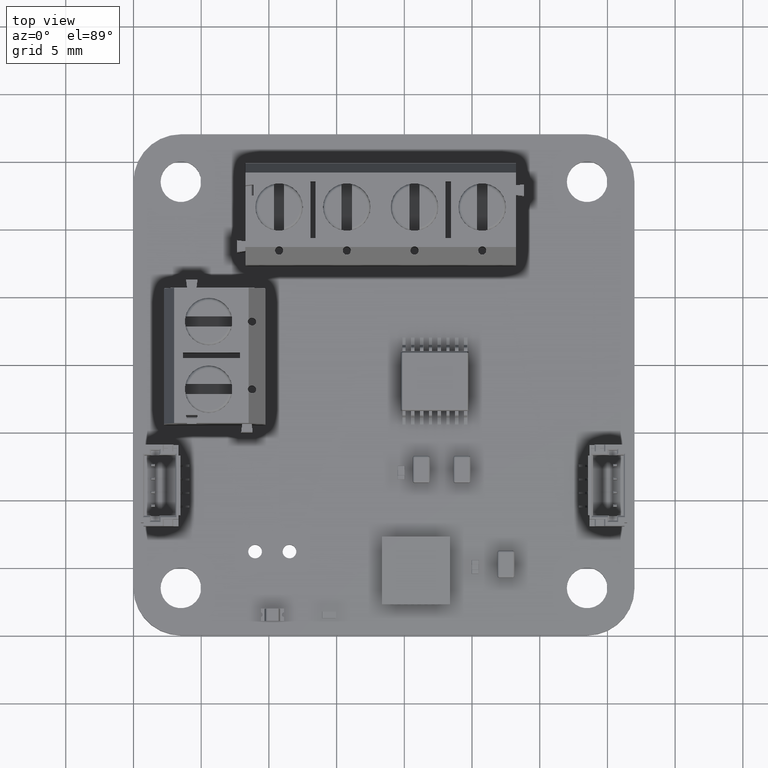
[diagram: clean part render]
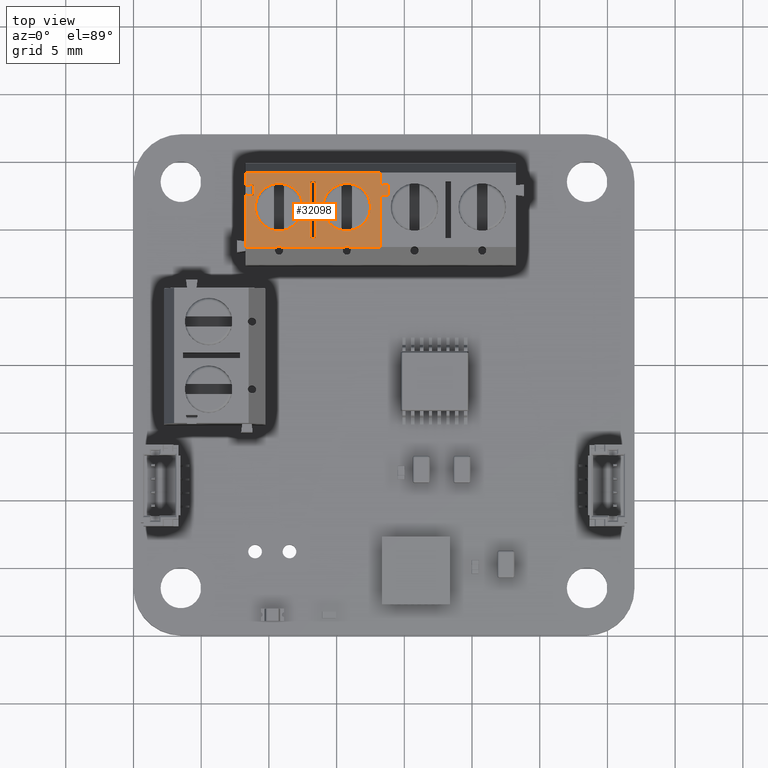
[diagram: same view with one face highlighted and labeled with its STEP entity id]
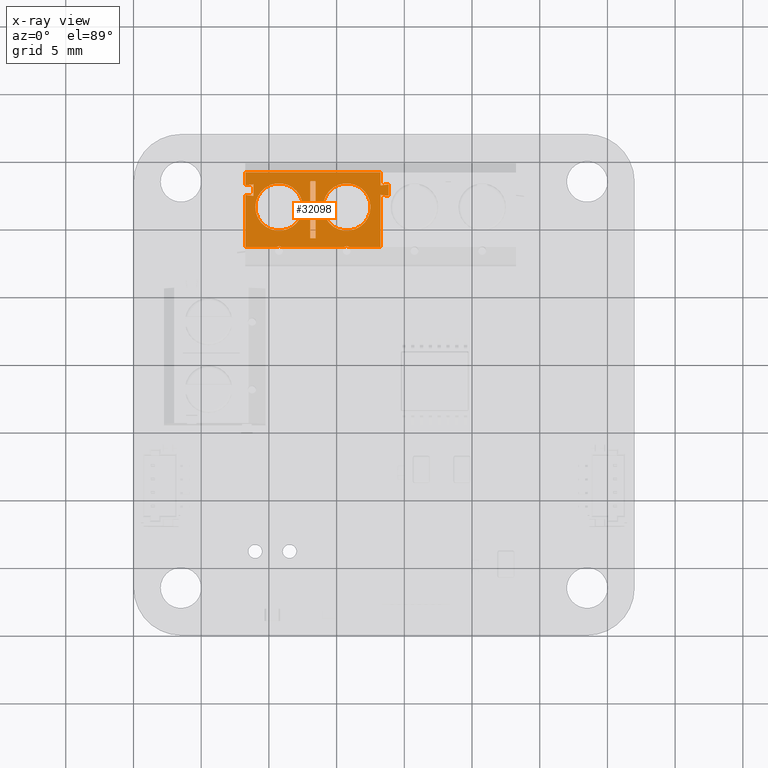
[diagram: x-ray of the same camera — body ghosted, the highlighted face saturated]
A machine part, top view. The second image highlights one B-rep face of the part: STEP entity #32098.
The next image is the same camera in x-ray: the body ghosted, the highlighted face saturated — about 0% of this face is hidden behind the body in this view.
In plain terms, the highlighted planar face has unit normal (-0, 0, 1).
Its self-contained STEP definition (entity closure, byte-faithful):
#32025 = VERTEX_POINT('',#32026);
#32026 = CARTESIAN_POINT('',(5.,2.5,4.95));
#32032 = EDGE_CURVE('',#32033,#32025,#32035,.T.);
#32033 = VERTEX_POINT('',#32034);
#32034 = CARTESIAN_POINT('',(5.,-1.35,4.95));
#32035 = LINE('',#32036,#32037);
#32036 = CARTESIAN_POINT('',(5.,-3.75,4.95));
#32037 = VECTOR('',#32038,1.);
#32038 = DIRECTION('',(0.,1.,3.469446951954E-16));
#32057 = VERTEX_POINT('',#32058);
#32058 = CARTESIAN_POINT('',(5.,-2.05,4.95));
#32064 = EDGE_CURVE('',#32065,#32057,#32067,.T.);
#32065 = VERTEX_POINT('',#32066);
#32066 = CARTESIAN_POINT('',(5.,-3.,4.95));
#32067 = LINE('',#32068,#32069);
#32068 = CARTESIAN_POINT('',(5.,-3.75,4.95));
#32069 = VECTOR('',#32070,1.);
#32070 = DIRECTION('',(0.,1.,3.469446951954E-16));
#32098 = ADVANCED_FACE('',(#32099,#32213,#32224,#32235),#32269,.T.);
#32099 = FACE_BOUND('',#32100,.T.);
#32100 = EDGE_LOOP('',(#32101,#32109,#32110,#32118,#32127,#32135,#32144,
    #32152,#32160,#32168,#32176,#32184,#32192,#32198,#32199,#32207));
#32101 = ORIENTED_EDGE('',*,*,#32102,.F.);
#32102 = EDGE_CURVE('',#32033,#32103,#32105,.T.);
#32103 = VERTEX_POINT('',#32104);
#32104 = CARTESIAN_POINT('',(4.4,-1.275,4.95));
#32105 = LINE('',#32106,#32107);
#32106 = CARTESIAN_POINT('',(5.,-1.35,4.95));
#32107 = VECTOR('',#32108,1.);
#32108 = DIRECTION('',(-0.992277876714,0.124034734589,4.303319318569E-17
    ));
#32109 = ORIENTED_EDGE('',*,*,#32032,.T.);
#32110 = ORIENTED_EDGE('',*,*,#32111,.T.);
#32111 = EDGE_CURVE('',#32025,#32112,#32114,.T.);
#32112 = VERTEX_POINT('',#32113);
#32113 = CARTESIAN_POINT('',(2.665831239518,2.5,4.95));
#32114 = LINE('',#32115,#32116);
#32115 = CARTESIAN_POINT('',(5.,2.5,4.95));
#32116 = VECTOR('',#32117,1.);
#32117 = DIRECTION('',(-1.,0.,0.));
#32118 = ORIENTED_EDGE('',*,*,#32119,.T.);
#32119 = EDGE_CURVE('',#32112,#32120,#32122,.T.);
#32120 = VERTEX_POINT('',#32121);
#32121 = CARTESIAN_POINT('',(2.334168760482,2.5,4.95));
#32122 = CIRCLE('',#32123,0.3);
#32123 = AXIS2_PLACEMENT_3D('',#32124,#32125,#32126);
#32124 = CARTESIAN_POINT('',(2.5,2.75,4.95));
#32125 = DIRECTION('',(0.,3.469446951954E-16,-1.));
#32126 = DIRECTION('',(-1.,0.,0.));
#32127 = ORIENTED_EDGE('',*,*,#32128,.T.);
#32128 = EDGE_CURVE('',#32120,#32129,#32131,.T.);
#32129 = VERTEX_POINT('',#32130);
#32130 = CARTESIAN_POINT('',(-2.334168760482,2.5,4.95));
#32131 = LINE('',#32132,#32133);
#32132 = CARTESIAN_POINT('',(5.,2.5,4.95));
#32133 = VECTOR('',#32134,1.);
#32134 = DIRECTION('',(-1.,0.,0.));
#32135 = ORIENTED_EDGE('',*,*,#32136,.T.);
#32136 = EDGE_CURVE('',#32129,#32137,#32139,.T.);
#32137 = VERTEX_POINT('',#32138);
#32138 = CARTESIAN_POINT('',(-2.665831239518,2.5,4.95));
#32139 = CIRCLE('',#32140,0.3);
#32140 = AXIS2_PLACEMENT_3D('',#32141,#32142,#32143);
#32141 = CARTESIAN_POINT('',(-2.5,2.75,4.95));
#32142 = DIRECTION('',(0.,3.469446951954E-16,-1.));
#32143 = DIRECTION('',(-1.,0.,0.));
#32144 = ORIENTED_EDGE('',*,*,#32145,.T.);
#32145 = EDGE_CURVE('',#32137,#32146,#32148,.T.);
#32146 = VERTEX_POINT('',#32147);
#32147 = CARTESIAN_POINT('',(-5.,2.5,4.95));
#32148 = LINE('',#32149,#32150);
#32149 = CARTESIAN_POINT('',(5.,2.5,4.95));
#32150 = VECTOR('',#32151,1.);
#32151 = DIRECTION('',(-1.,0.,0.));
#32152 = ORIENTED_EDGE('',*,*,#32153,.F.);
#32153 = EDGE_CURVE('',#32154,#32146,#32156,.T.);
#32154 = VERTEX_POINT('',#32155);
#32155 = CARTESIAN_POINT('',(-5.,-1.35,4.95));
#32156 = LINE('',#32157,#32158);
#32157 = CARTESIAN_POINT('',(-5.,-3.75,4.95));
#32158 = VECTOR('',#32159,1.);
#32159 = DIRECTION('',(0.,1.,3.469446951954E-16));
#32160 = ORIENTED_EDGE('',*,*,#32161,.F.);
#32161 = EDGE_CURVE('',#32162,#32154,#32164,.T.);
#32162 = VERTEX_POINT('',#32163);
#32163 = CARTESIAN_POINT('',(-5.6,-1.275,4.95));
#32164 = LINE('',#32165,#32166);
#32165 = CARTESIAN_POINT('',(-5.6,-1.275,4.95));
#32166 = VECTOR('',#32167,1.);
#32167 = DIRECTION('',(0.992277876714,-0.124034734589,
    -4.303319318569E-17));
#32168 = ORIENTED_EDGE('',*,*,#32169,.F.);
#32169 = EDGE_CURVE('',#32170,#32162,#32172,.T.);
#32170 = VERTEX_POINT('',#32171);
#32171 = CARTESIAN_POINT('',(-5.6,-2.125,4.95));
#32172 = LINE('',#32173,#32174);
#32173 = CARTESIAN_POINT('',(-5.6,-2.125,4.95));
#32174 = VECTOR('',#32175,1.);
#32175 = DIRECTION('',(0.,1.,3.469446951954E-16));
#32176 = ORIENTED_EDGE('',*,*,#32177,.F.);
#32177 = EDGE_CURVE('',#32178,#32170,#32180,.T.);
#32178 = VERTEX_POINT('',#32179);
#32179 = CARTESIAN_POINT('',(-5.,-2.05,4.95));
#32180 = LINE('',#32181,#32182);
#32181 = CARTESIAN_POINT('',(-5.,-2.05,4.95));
#32182 = VECTOR('',#32183,1.);
#32183 = DIRECTION('',(-0.992277876714,-0.124034734589,
    -4.303319318569E-17));
#32184 = ORIENTED_EDGE('',*,*,#32185,.F.);
#32185 = EDGE_CURVE('',#32186,#32178,#32188,.T.);
#32186 = VERTEX_POINT('',#32187);
#32187 = CARTESIAN_POINT('',(-5.,-3.,4.95));
#32188 = LINE('',#32189,#32190);
#32189 = CARTESIAN_POINT('',(-5.,-3.75,4.95));
#32190 = VECTOR('',#32191,1.);
#32191 = DIRECTION('',(0.,1.,3.469446951954E-16));
#32192 = ORIENTED_EDGE('',*,*,#32193,.T.);
#32193 = EDGE_CURVE('',#32186,#32065,#32194,.T.);
#32194 = LINE('',#32195,#32196);
#32195 = CARTESIAN_POINT('',(5.,-3.,4.95));
#32196 = VECTOR('',#32197,1.);
#32197 = DIRECTION('',(1.,0.,0.));
#32198 = ORIENTED_EDGE('',*,*,#32064,.T.);
#32199 = ORIENTED_EDGE('',*,*,#32200,.F.);
#32200 = EDGE_CURVE('',#32201,#32057,#32203,.T.);
#32201 = VERTEX_POINT('',#32202);
#32202 = CARTESIAN_POINT('',(4.4,-2.125,4.95));
#32203 = LINE('',#32204,#32205);
#32204 = CARTESIAN_POINT('',(4.4,-2.125,4.95));
#32205 = VECTOR('',#32206,1.);
#32206 = DIRECTION('',(0.992277876714,0.124034734589,4.303319318569E-17)
  );
#32207 = ORIENTED_EDGE('',*,*,#32208,.F.);
#32208 = EDGE_CURVE('',#32103,#32201,#32209,.T.);
#32209 = LINE('',#32210,#32211);
#32210 = CARTESIAN_POINT('',(4.4,-1.275,4.95));
#32211 = VECTOR('',#32212,1.);
#32212 = DIRECTION('',(0.,-1.,-3.469446951954E-16));
#32213 = FACE_BOUND('',#32214,.T.);
#32214 = EDGE_LOOP('',(#32215));
#32215 = ORIENTED_EDGE('',*,*,#32216,.T.);
#32216 = EDGE_CURVE('',#32217,#32217,#32219,.T.);
#32217 = VERTEX_POINT('',#32218);
#32218 = CARTESIAN_POINT('',(-0.75,-0.45,4.95));
#32219 = CIRCLE('',#32220,1.75);
#32220 = AXIS2_PLACEMENT_3D('',#32221,#32222,#32223);
#32221 = CARTESIAN_POINT('',(-2.5,-0.45,4.95));
#32222 = DIRECTION('',(0.,3.469446951954E-16,-1.));
#32223 = DIRECTION('',(1.,0.,0.));
#32224 = FACE_BOUND('',#32225,.T.);
#32225 = EDGE_LOOP('',(#32226));
#32226 = ORIENTED_EDGE('',*,*,#32227,.T.);
#32227 = EDGE_CURVE('',#32228,#32228,#32230,.T.);
#32228 = VERTEX_POINT('',#32229);
#32229 = CARTESIAN_POINT('',(4.25,-0.45,4.95));
#32230 = CIRCLE('',#32231,1.75);
#32231 = AXIS2_PLACEMENT_3D('',#32232,#32233,#32234);
#32232 = CARTESIAN_POINT('',(2.5,-0.45,4.95));
#32233 = DIRECTION('',(0.,3.469446951954E-16,-1.));
#32234 = DIRECTION('',(1.,0.,0.));
#32235 = FACE_BOUND('',#32236,.T.);
#32236 = EDGE_LOOP('',(#32237,#32247,#32255,#32263));
#32237 = ORIENTED_EDGE('',*,*,#32238,.T.);
#32238 = EDGE_CURVE('',#32239,#32241,#32243,.T.);
#32239 = VERTEX_POINT('',#32240);
#32240 = CARTESIAN_POINT('',(0.2,-2.35,4.95));
#32241 = VERTEX_POINT('',#32242);
#32242 = CARTESIAN_POINT('',(-0.2,-2.35,4.95));
#32243 = LINE('',#32244,#32245);
#32244 = CARTESIAN_POINT('',(0.2,-2.35,4.95));
#32245 = VECTOR('',#32246,1.);
#32246 = DIRECTION('',(-1.,0.,0.));
#32247 = ORIENTED_EDGE('',*,*,#32248,.T.);
#32248 = EDGE_CURVE('',#32241,#32249,#32251,.T.);
#32249 = VERTEX_POINT('',#32250);
#32250 = CARTESIAN_POINT('',(-0.2,1.85,4.95));
#32251 = LINE('',#32252,#32253);
#32252 = CARTESIAN_POINT('',(-0.2,-2.35,4.95));
#32253 = VECTOR('',#32254,1.);
#32254 = DIRECTION('',(0.,1.,3.469446951954E-16));
#32255 = ORIENTED_EDGE('',*,*,#32256,.T.);
#32256 = EDGE_CURVE('',#32249,#32257,#32259,.T.);
#32257 = VERTEX_POINT('',#32258);
#32258 = CARTESIAN_POINT('',(0.2,1.85,4.95));
#32259 = LINE('',#32260,#32261);
#32260 = CARTESIAN_POINT('',(-0.2,1.85,4.95));
#32261 = VECTOR('',#32262,1.);
#32262 = DIRECTION('',(1.,0.,0.));
#32263 = ORIENTED_EDGE('',*,*,#32264,.T.);
#32264 = EDGE_CURVE('',#32257,#32239,#32265,.T.);
#32265 = LINE('',#32266,#32267);
#32266 = CARTESIAN_POINT('',(0.2,1.85,4.95));
#32267 = VECTOR('',#32268,1.);
#32268 = DIRECTION('',(0.,-1.,-3.469446951954E-16));
#32269 = PLANE('',#32270);
#32270 = AXIS2_PLACEMENT_3D('',#32271,#32272,#32273);
#32271 = CARTESIAN_POINT('',(5.,-3.75,4.95));
#32272 = DIRECTION('',(0.,-3.469446951954E-16,1.));
#32273 = DIRECTION('',(0.,-1.,-3.469446951954E-16));